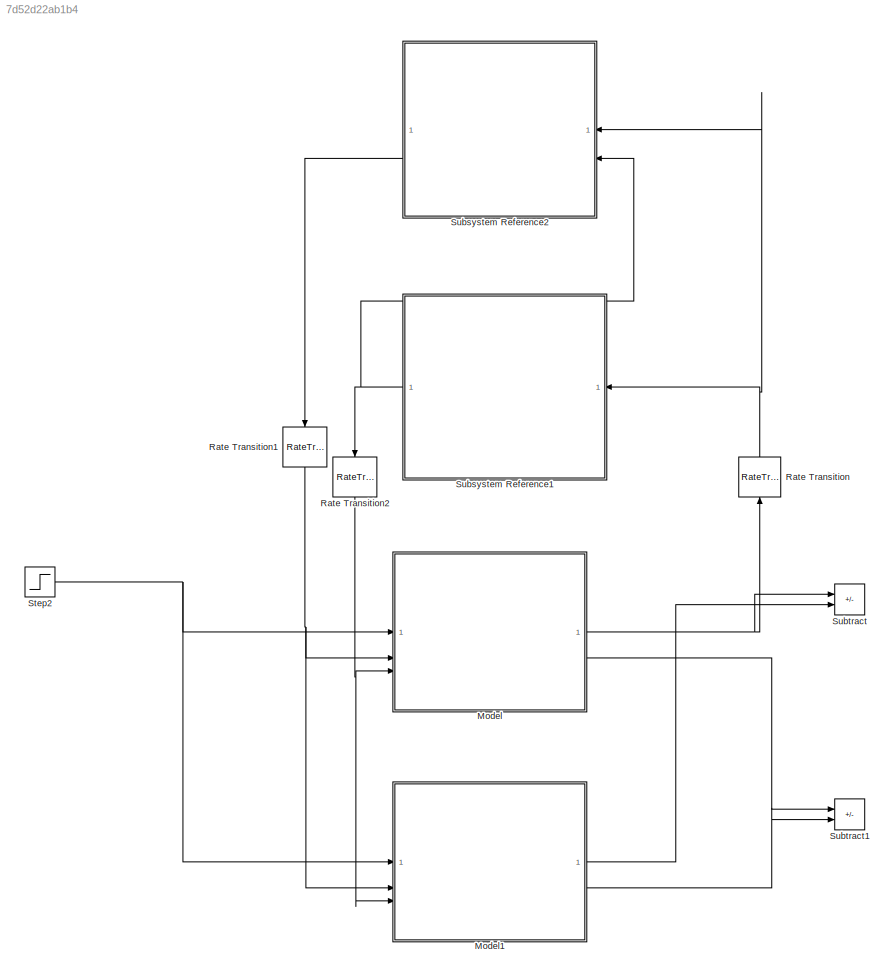
MODEL slx_7d52d22ab1b4
KIND model
CONFIG AbsTol = auto
CONFIG EnableMultiTasking = on
CONFIG FixedStep = 0.001
CONFIG MaxStep = auto
CONFIG MinStep = auto
CONFIG RelTol = 1e-5
CONFIG SampleTimeConstraint = Unconstrained
CONFIG SolverName = FixedStepAuto
CONFIG StartTime = 0.0
CONFIG StopTime = 5
BLOCK [ModelReference] Model
  ModelNameDialog = SIL_PIL_torque_controller_model.slx
  ModelReferenceVersion = 1.4
BLOCK [ModelReference] Model1
  ModelNameDialog = SIL_PIL_torque_controller_model.slx
  ModelReferenceVersion = 1.4
BLOCK [RateTransition] Rate Transition
  NameLocation = right
BLOCK [RateTransition] Rate Transition1
  NameLocation = left
BLOCK [RateTransition] Rate Transition2
  NameLocation = left
BLOCK [Step] Step2
  After = 0.15
  SampleTime = Ts
  Time = 0
BLOCK [SubSystem] Subsystem Reference1
  NameLocation = top
  ReferencedSubsystem = pololu_37D_pos_second_order
BLOCK [SubSystem] Subsystem Reference2
  K = 1.339
  L = 2.3e-3
  NameLocation = top
  R = 1.7
  ReferencedSubsystem = pololu_37D_torque_first_order
BLOCK [Sum] Subtract
  IconShape = rectangular
  Inputs = +-
BLOCK [Sum] Subtract1
  IconShape = rectangular
  Inputs = +-
LINE Model1:1 -> Subtract:2
LINE Model1:2 -> Subtract1:2
NET Model:1 -> Rate Transition:1, Subtract:1
LINE Model:2 -> Subtract1:1
NET Rate Transition1:1 -> Model1:2, Model:2
NET Rate Transition2:1 -> Model1:3, Model:3
NET Rate Transition:1 -> Subsystem Reference1:1, Subsystem Reference2:1
NET Step2:1 -> Model1:1, Model:1
NET Subsystem Reference1:1 -> Rate Transition2:1, Subsystem Reference2:2
LINE Subsystem Reference2:2 -> Rate Transition1:1
note: NET lines group one-source signal fan-out (src -> all destinations, sorted); 1:1 wires keep LINE
